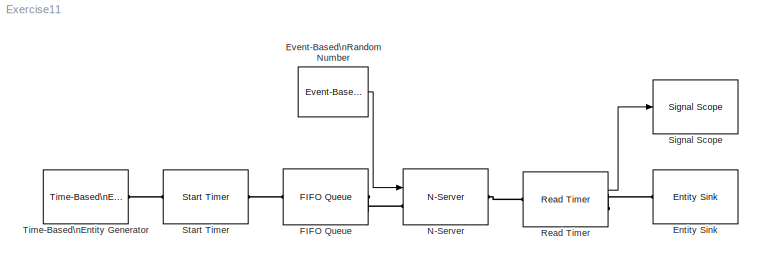
MODEL Exercise11
KIND model
BLOCK [Reference] Entity Sink  REF=simeventssink1/Entity Sink
  AvailableForArrivals = on
  FunctionWithSeparateData = off
  Ports = [0, 0, 0, 0, 0, 1]
  Priority = 1
  RTWMemSecDataConstants = Inherit from model
  RTWMemSecDataInternal = Inherit from model
  RTWMemSecDataParameters = Inherit from model
  RTWMemSecFuncExecute = Inherit from model
  RTWMemSecFuncInitTerm = Inherit from model
  ShowPortLabels = FromPortIcon
  SourceBlock = simeventssink1/Entity Sink
  SourceType = Entity Sink
  StatNumberArrived = Off
  SystemSampleTime = -1
  UserData = DataTag0
  UserDataPersistent = on
BLOCK [Reference] Event-Based\nRandom Number  REF=simeventsgenerators1/Signal Generators/Event-Based\nRandom Number
  FunctionWithSeparateData = off
  IsProcessed = on
  Ports = [0, 1]
  RTWMemSecDataConstants = Inherit from model
  RTWMemSecDataInternal = Inherit from model
  RTWMemSecDataParameters = Inherit from model
  RTWMemSecFuncExecute = Inherit from model
  RTWMemSecFuncInitTerm = Inherit from model
  ShowPortLabels = FromPortIcon
  SourceBlock = simeventsgenerators1/Signal Generators/Event-Based\nRandom Number
  SourceType = Event-Based Random Number
  SystemSampleTime = -1
  cdfVecCont = [0 1]
  distribution = Exponential
  isConnected = 1
  maxBeta = 1
  maxTri = 3
  maxUnid = 1
  maxUnif = 1
  meanExp = 5
  meanNorm = 0
  meanPoiss = 1
  minBeta = 0
  minTri = 1
  minUnid = 0
  minUnif = 1
  modeTri = 2
  numTrialBino = 1
  numValueUnid = 2
  pOneBern = 0.25
  pSuccessBino = 0.5
  pSuccessGeo = 0.5
  probVecDisc = [0.5 0.5]
  scaleGam = 1
  scaleLogl = 1
  scaleLogn = 1
  scaleWbl = 1
  seed = 9991125
  shape1Beta = 1
  shape2Beta = 1
  shapeGam = 1
  shapeLogn = 1
  shapeWbl = 1
  stdNorm = 1
  thresholdGam = 0
  thresholdLogl = 0
  thresholdLogn = 0
  thresholdWbl = 0
  valueVecCont = [0 1]
  valueVecDisc = [0 1]
BLOCK [Reference] FIFO Queue  REF=simeventsqueue1/FIFO Queue
  Capacity = 25
  EnableTOPort = off
  FunctionWithSeparateData = off
  Ports = [0, 0, 0, 0, 0, 1, 1]
  Priority = 1
  RTWMemSecDataConstants = Inherit from model
  RTWMemSecDataInternal = Inherit from model
  RTWMemSecDataParameters = Inherit from model
  RTWMemSecFuncExecute = Inherit from model
  RTWMemSecFuncInitTerm = Inherit from model
  ShowPortLabels = FromPortIcon
  SourceBlock = simeventsqueue1/FIFO Queue
  SourceType = FIFO Queue
  StatAverageQueueLength = Off
  StatAverageWait = Off
  StatNumberDeparted = Off
  StatNumberInBlock = Off
  StatNumberTimedout = Off
  StatPendingEntity = Off
  SystemSampleTime = -1
  UserData = DataTag1
  UserDataPersistent = on
BLOCK [Reference] N-Server  REF=simeventsserver1/N-Server
  AttributeName = ServiceTime
  EnableTOPort = off
  FunctionWithSeparateData = off
  NumberOfServers = 5
  Ports = [1, 0, 0, 0, 0, 1, 1]
  Priority = 1
  PriorityServiceCompletion = 500
  RTWMemSecDataConstants = Inherit from model
  RTWMemSecDataInternal = Inherit from model
  RTWMemSecDataParameters = Inherit from model
  RTWMemSecFuncExecute = Inherit from model
  RTWMemSecFuncInitTerm = Inherit from model
  ServiceTime = 1
  ServiceTimeFrom = Signal port t
  ShowPortLabels = FromPortIcon
  SourceBlock = simeventsserver1/N-Server
  SourceType = N-Server
  StatAverageWait = Off
  StatNumberDeparted = Off
  StatNumberInBlock = Off
  StatNumberPending = Off
  StatNumberTimedout = Off
  StatPendingEntity = Off
  StatUtilization = Off
  SystemSampleTime = -1
  UserData = DataTag2
  UserDataPersistent = on
BLOCK [Reference] Read Timer  REF=simeventstiming1/Read Timer
  FunctionWithSeparateData = off
  Ports = [0, 1, 0, 0, 0, 1, 1]
  Priority = 0
  RTWMemSecDataConstants = Inherit from model
  RTWMemSecDataInternal = Inherit from model
  RTWMemSecDataParameters = Inherit from model
  RTWMemSecFuncExecute = Inherit from model
  RTWMemSecFuncInitTerm = Inherit from model
  ShowPortLabels = FromPortIcon
  SourceBlock = simeventstiming1/Read Timer
  SourceType = Read Timer
  StatAverageTimeElapsed = On
  StatNumberDeparted = Off
  StatTimeElapsed = Off
  StatTimerNumberDeparted = Off
  SystemSampleTime = -1
  TimerModeOption = Error
  TimerStop = off
  TimerTag = T1
  UserData = DataTag3
  UserDataPersistent = on
BLOCK [Reference] Signal Scope  REF=simeventssink1/Signal Scope
  AttributeNameX = Count
  AttributeNameY = Count
  AxisGrid = on
  AxisLegend = off
  AxisZoom = off
  DataPointsLimit = 10000
  DataStoreOption = Limited
  EnableEntityOutport = on
  FigurePosition = des_figposition([5 60 25 25])
  FunctionWithSeparateData = off
  InputType = Signal
  LineColors = b
  LineMarkers = .
  LineStyles = -
  NumInputs = 1
  OpenScopeAtSimStart = on
  PlotType = Continuous
  Ports = [1]
  Priority = 1
  RTWMemSecDataConstants = Inherit from model
  RTWMemSecDataInternal = Inherit from model
  RTWMemSecDataParameters = Inherit from model
  RTWMemSecFuncExecute = Inherit from model
  RTWMemSecFuncInitTerm = Inherit from model
  ShowCountPlotted = off
  ShowPortLabels = FromPortIcon
  ShowToolbar = on
  SourceBlock = simeventssink1/Signal Scope
  SourceType = Signal Scope
  StatNumberArrived = Off
  SystemSampleTime = -1
  Title = Average Waiting Time in Queuing System
  UserData = DataTag4
  UserDataPersistent = on
  XInputOptionEntity = Event time
  XInputOptionSignal = Event time
  XLabel = Simulation Time
  XLimitExceededOption = Keep axis limits unchanged
  XMax = 2000
  XMin = 0
  YLabel = Average Waiting Time
  YLimitExceededOption = Stretch axis limits
  YMax = 6
  YMin = 0
BLOCK [Reference] Start Timer  REF=simeventstiming1/Start Timer
  FunctionWithSeparateData = off
  Ports = [0, 0, 0, 0, 0, 1, 1]
  Priority = 0
  RTWMemSecDataConstants = Inherit from model
  RTWMemSecDataInternal = Inherit from model
  RTWMemSecDataParameters = Inherit from model
  RTWMemSecFuncExecute = Inherit from model
  RTWMemSecFuncInitTerm = Inherit from model
  ShowPortLabels = FromPortIcon
  SourceBlock = simeventstiming1/Start Timer
  SourceType = Start Timer
  StatNumberDeparted = Off
  SystemSampleTime = -1
  TimerStartedOption = Warn and continue
  TimerTag = T1
  UserData = DataTag5
  UserDataPersistent = on
BLOCK [Reference] Time-Based\nEntity Generator  REF=simeventsgenerators1/Entity Generators/Time-Based\nEntity Generator
  DialogController = des_ddg_create
  DialogControllerArgs = DataTag7
  Distribution = Exponential
  EntityType = Blank
  FunctionWithSeparateData = off
  GenerateEntitiesUpon = Intergeneration time from dialog
  GenerateEntityAtSimulationStart = on
  InitialSeed = 12345
  Maximum = 1
  Mean = 2
  Minimum = 0
  Period = 1
  Ports = [0, 0, 0, 0, 0, 0, 1]
  Priority = 1
  PriorityEntityGeneration = 300
  RTWMemSecDataConstants = Inherit from model
  RTWMemSecDataInternal = Inherit from model
  RTWMemSecDataParameters = Inherit from model
  RTWMemSecFuncExecute = Inherit from model
  RTWMemSecFuncInitTerm = Inherit from model
  ResponseWhenBlocked = Pause generation
  ResponseWhenUnblocked = Immediate restart
  ShowPortLabels = FromPortIcon
  SourceBlock = simeventsgenerators1/Entity Generators/Time-Based\nEntity Generator
  SourceType = Time-Based Entity Generator
  StatAverageIntergenerationTime = Off
  StatNumberDeparted = Off
  StatPendingEntity = Off
  SystemSampleTime = -1
  UserData = DataTag6
  UserDataPersistent = on
LINE Event-Based\nRandom Number:1 -> N-Server:1
LINE Read Timer:1 -> Signal Scope:1
PLINE Entity Sink:LConn1 -- Read Timer:RConn1
PLINE FIFO Queue:LConn1 -- Start Timer:RConn1
PLINE FIFO Queue:RConn1 -- N-Server:LConn1
PLINE N-Server:RConn1 -- Read Timer:LConn1
PLINE Start Timer:LConn1 -- Time-Based\nEntity Generator:RConn1
